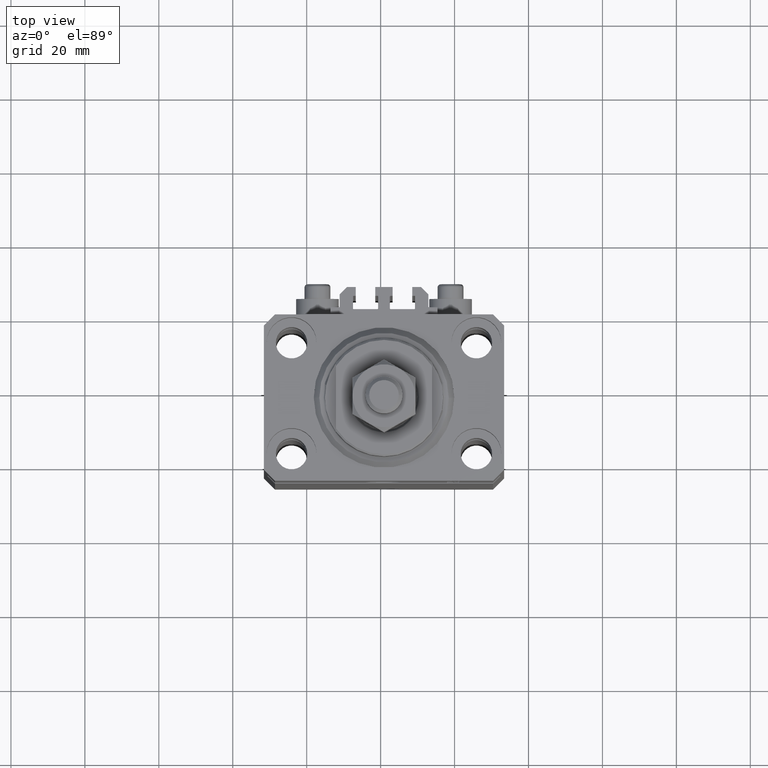
[diagram: clean part render]
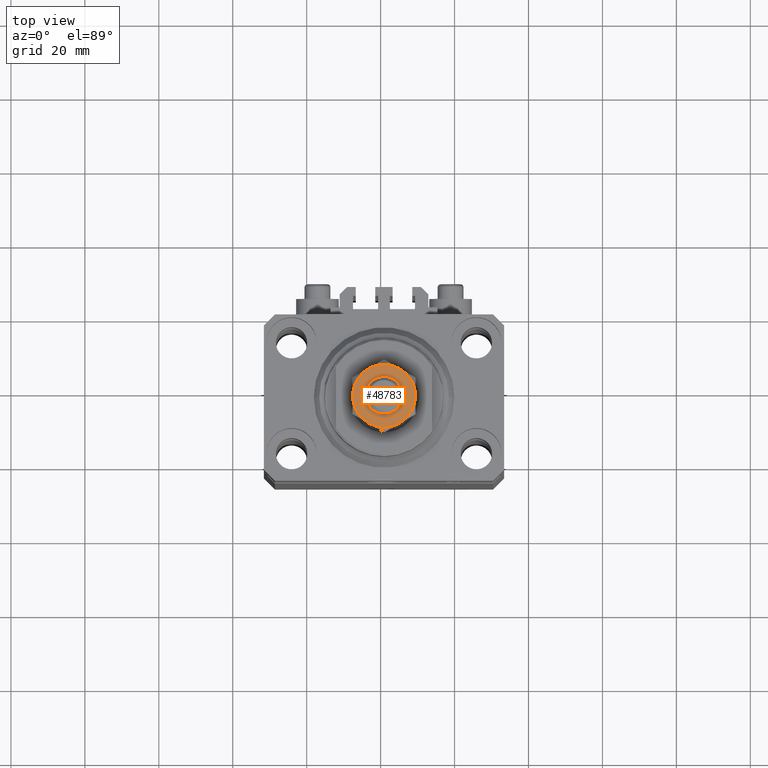
[diagram: same view with one face highlighted and labeled with its STEP entity id]
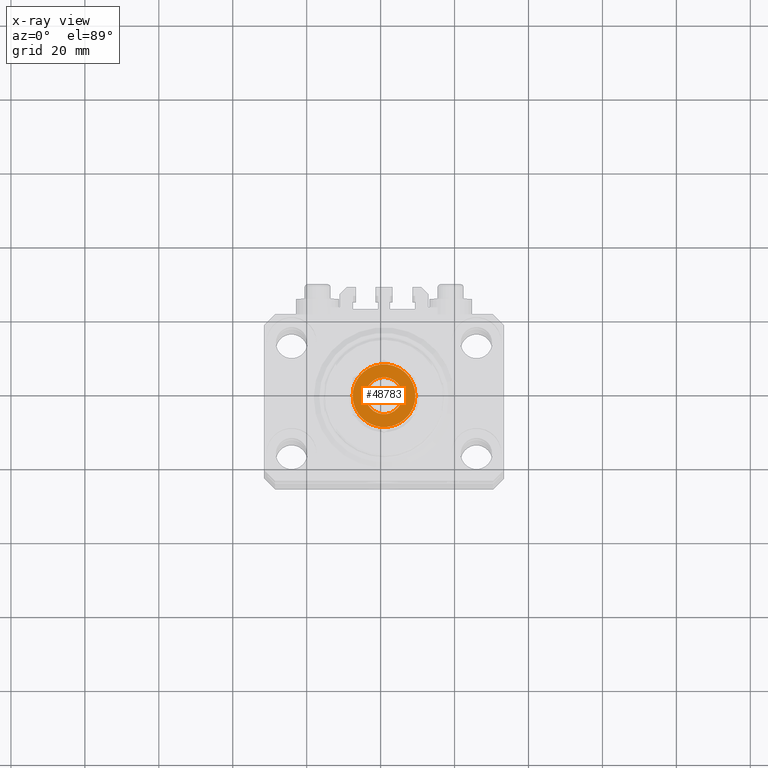
[diagram: x-ray of the same camera — body ghosted, the highlighted face saturated]
A machine part, top view. The second image highlights one B-rep face of the part: STEP entity #48783.
The next image is the same camera in x-ray: the body ghosted, the highlighted face saturated — about 0% of this face is hidden behind the body in this view.
In plain terms, the highlighted planar face has unit normal (0, 0, 1).
Its self-contained STEP definition (entity closure, byte-faithful):
#219 = EDGE_LOOP ( 'NONE', ( #14810, #17887, #9068, #48285, #31103, #37293 ) ) ;
#505 = CARTESIAN_POINT ( 'NONE',  ( 0.000000000000000000, 0.000000000000000000, 14.00000000000000000 ) ) ;
#744 = AXIS2_PLACEMENT_3D ( 'NONE', #45380, #3031, #4015 ) ;
#950 = VERTEX_POINT ( 'NONE', #29480 ) ;
#1190 = CARTESIAN_POINT ( 'NONE',  ( 8.499999999999996447, 1.502314598737159820E-15, 14.00000000000000000 ) ) ;
#1473 = DIRECTION ( 'NONE',  ( 1.000000000000000000, 0.000000000000000000, 0.000000000000000000 ) ) ;
#1805 = CIRCLE ( 'NONE', #20064, 8.499999999999996447 ) ;
#3031 = DIRECTION ( 'NONE',  ( 0.000000000000000000, -0.000000000000000000, 1.000000000000000000 ) ) ;
#3310 = ORIENTED_EDGE ( 'NONE', *, *, #42762, .T. ) ;
#4015 = DIRECTION ( 'NONE',  ( 1.000000000000000000, 0.000000000000000000, 0.000000000000000000 ) ) ;
#4092 = CARTESIAN_POINT ( 'NONE',  ( 0.000000000000000000, 0.000000000000000000, 14.00000000000000000 ) ) ;
#4520 = AXIS2_PLACEMENT_3D ( 'NONE', #35597, #32101, #1473 ) ;
#4995 = AXIS2_PLACEMENT_3D ( 'NONE', #46251, #43502, #32034 ) ;
#5302 = DIRECTION ( 'NONE',  ( 0.000000000000000000, -0.000000000000000000, 1.000000000000000000 ) ) ;
#5996 = CARTESIAN_POINT ( 'NONE',  ( -5.000000000000000000, 6.123233995736766282E-16, 13.99999999999999822 ) ) ;
#6458 = EDGE_LOOP ( 'NONE', ( #35876, #3310 ) ) ;
#6896 = CIRCLE ( 'NONE', #4520, 8.499999999999996447 ) ;
#8324 = EDGE_CURVE ( 'NONE', #46877, #43350, #29231, .T. ) ;
#9068 = ORIENTED_EDGE ( 'NONE', *, *, #41856, .T. ) ;
#9589 = AXIS2_PLACEMENT_3D ( 'NONE', #14883, #37330, #15137 ) ;
#11074 = DIRECTION ( 'NONE',  ( 1.000000000000000000, 0.000000000000000000, -0.000000000000000000 ) ) ;
#12279 = EDGE_CURVE ( 'NONE', #37584, #19062, #23806, .T. ) ;
#12937 = CARTESIAN_POINT ( 'NONE',  ( 4.249999999999999112, 7.361215932167725740, 14.00000000000000000 ) ) ;
#13641 = DIRECTION ( 'NONE',  ( 1.000000000000000000, 0.000000000000000000, 0.000000000000000000 ) ) ;
#14563 = CARTESIAN_POINT ( 'NONE',  ( -4.250000000000000888, -7.361215932167725740, 14.00000000000000000 ) ) ;
#14810 = ORIENTED_EDGE ( 'NONE', *, *, #12279, .T. ) ;
#14883 = CARTESIAN_POINT ( 'NONE',  ( 0.000000000000000000, 0.000000000000000000, 14.00000000000000000 ) ) ;
#15137 = DIRECTION ( 'NONE',  ( 1.000000000000000000, 0.000000000000000000, 0.000000000000000000 ) ) ;
#16010 = DIRECTION ( 'NONE',  ( 1.000000000000000000, 0.000000000000000000, 0.000000000000000000 ) ) ;
#17887 = ORIENTED_EDGE ( 'NONE', *, *, #35827, .T. ) ;
#19062 = VERTEX_POINT ( 'NONE', #1190 ) ;
#19202 = CARTESIAN_POINT ( 'NONE',  ( -4.250000000000000000, 7.361215932167723963, 14.00000000000000000 ) ) ;
#19962 = DIRECTION ( 'NONE',  ( 1.000000000000000000, 0.000000000000000000, 0.000000000000000000 ) ) ;
#20000 = VERTEX_POINT ( 'NONE', #12937 ) ;
#20064 = AXIS2_PLACEMENT_3D ( 'NONE', #31192, #46386, #19962 ) ;
#22775 = FACE_BOUND ( 'NONE', #6458, .T. ) ;
#23307 = EDGE_CURVE ( 'NONE', #43350, #36282, #39996, .T. ) ;
#23806 = CIRCLE ( 'NONE', #744, 8.499999999999996447 ) ;
#26561 = CIRCLE ( 'NONE', #33750, 5.000000000000000000 ) ;
#27473 = CARTESIAN_POINT ( 'NONE',  ( 0.000000000000000000, 0.000000000000000000, 14.00000000000000000 ) ) ;
#28153 = AXIS2_PLACEMENT_3D ( 'NONE', #29347, #33560, #13641 ) ;
#29231 = CIRCLE ( 'NONE', #48308, 8.499999999999996447 ) ;
#29347 = CARTESIAN_POINT ( 'NONE',  ( 0.000000000000000000, 0.000000000000000000, 14.00000000000000000 ) ) ;
#29480 = CARTESIAN_POINT ( 'NONE',  ( 5.000000000000000000, 0.000000000000000000, 13.99999999999999822 ) ) ;
#30888 = DIRECTION ( 'NONE',  ( 1.000000000000000000, 0.000000000000000000, 0.000000000000000000 ) ) ;
#31008 = PLANE ( 'NONE',  #47490 ) ;
#31074 = CIRCLE ( 'NONE', #9589, 5.000000000000000000 ) ;
#31103 = ORIENTED_EDGE ( 'NONE', *, *, #23307, .T. ) ;
#31192 = CARTESIAN_POINT ( 'NONE',  ( 0.000000000000000000, 0.000000000000000000, 14.00000000000000000 ) ) ;
#31286 = EDGE_CURVE ( 'NONE', #950, #41435, #31074, .T. ) ;
#32034 = DIRECTION ( 'NONE',  ( 1.000000000000000000, 0.000000000000000000, 0.000000000000000000 ) ) ;
#32101 = DIRECTION ( 'NONE',  ( 0.000000000000000000, -0.000000000000000000, 1.000000000000000000 ) ) ;
#33560 = DIRECTION ( 'NONE',  ( 0.000000000000000000, -0.000000000000000000, 1.000000000000000000 ) ) ;
#33750 = AXIS2_PLACEMENT_3D ( 'NONE', #505, #37875, #30888 ) ;
#33948 = CARTESIAN_POINT ( 'NONE',  ( 4.250000000000000000, -7.361215932167723963, 14.00000000000000000 ) ) ;
#34246 = FACE_OUTER_BOUND ( 'NONE', #219, .T. ) ;
#35597 = CARTESIAN_POINT ( 'NONE',  ( 0.000000000000000000, 0.000000000000000000, 14.00000000000000000 ) ) ;
#35827 = EDGE_CURVE ( 'NONE', #19062, #20000, #1805, .T. ) ;
#35876 = ORIENTED_EDGE ( 'NONE', *, *, #31286, .T. ) ;
#36282 = VERTEX_POINT ( 'NONE', #14563 ) ;
#37293 = ORIENTED_EDGE ( 'NONE', *, *, #48307, .T. ) ;
#37330 = DIRECTION ( 'NONE',  ( -0.000000000000000000, 0.000000000000000000, -1.000000000000000000 ) ) ;
#37584 = VERTEX_POINT ( 'NONE', #33948 ) ;
#37875 = DIRECTION ( 'NONE',  ( -0.000000000000000000, 0.000000000000000000, -1.000000000000000000 ) ) ;
#38258 = CARTESIAN_POINT ( 'NONE',  ( -8.499999999999996447, 0.000000000000000000, 14.00000000000000000 ) ) ;
#39996 = CIRCLE ( 'NONE', #4995, 8.499999999999996447 ) ;
#41435 = VERTEX_POINT ( 'NONE', #5996 ) ;
#41665 = CIRCLE ( 'NONE', #28153, 8.499999999999996447 ) ;
#41856 = EDGE_CURVE ( 'NONE', #20000, #46877, #41665, .T. ) ;
#42762 = EDGE_CURVE ( 'NONE', #41435, #950, #26561, .T. ) ;
#43350 = VERTEX_POINT ( 'NONE', #38258 ) ;
#43502 = DIRECTION ( 'NONE',  ( 0.000000000000000000, -0.000000000000000000, 1.000000000000000000 ) ) ;
#45380 = CARTESIAN_POINT ( 'NONE',  ( 0.000000000000000000, 0.000000000000000000, 14.00000000000000000 ) ) ;
#46251 = CARTESIAN_POINT ( 'NONE',  ( 0.000000000000000000, 0.000000000000000000, 14.00000000000000000 ) ) ;
#46386 = DIRECTION ( 'NONE',  ( 0.000000000000000000, 0.000000000000000000, 1.000000000000000000 ) ) ;
#46877 = VERTEX_POINT ( 'NONE', #19202 ) ;
#47490 = AXIS2_PLACEMENT_3D ( 'NONE', #4092, #48954, #11074 ) ;
#48285 = ORIENTED_EDGE ( 'NONE', *, *, #8324, .T. ) ;
#48307 = EDGE_CURVE ( 'NONE', #36282, #37584, #6896, .T. ) ;
#48308 = AXIS2_PLACEMENT_3D ( 'NONE', #27473, #5302, #16010 ) ;
#48783 = ADVANCED_FACE ( 'NONE', ( #22775, #34246 ), #31008, .T. ) ;
#48954 = DIRECTION ( 'NONE',  ( 0.000000000000000000, -0.000000000000000000, 1.000000000000000000 ) ) ;